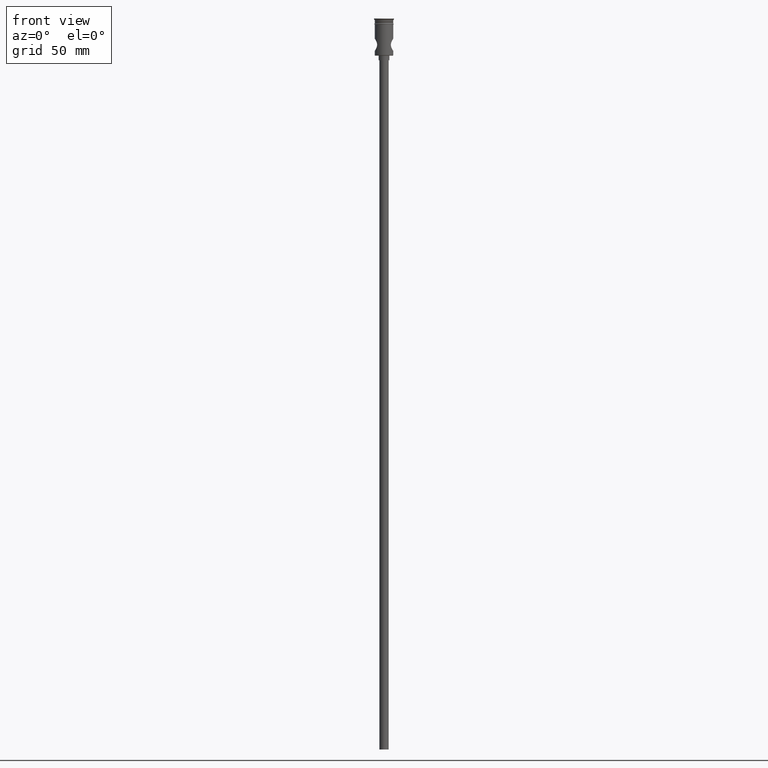
[diagram: clean part render]
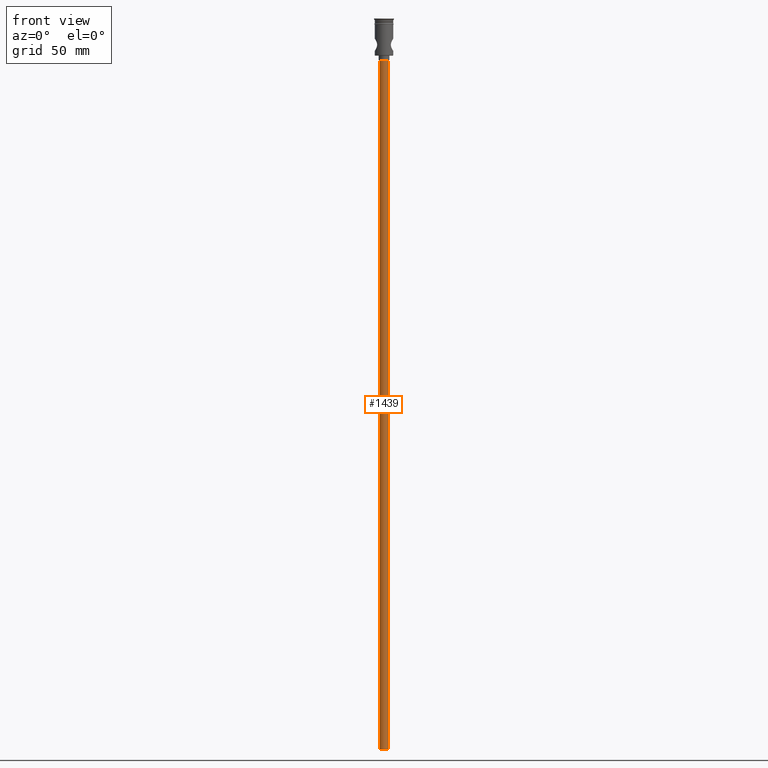
[diagram: same view with one face highlighted and labeled with its STEP entity id]
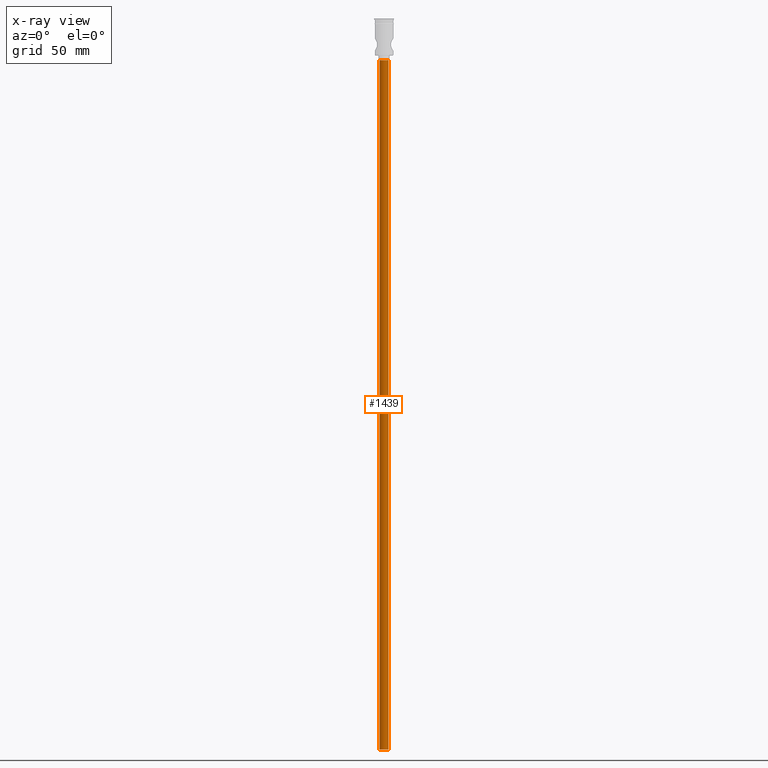
[diagram: x-ray of the same camera — body ghosted, the highlighted face saturated]
A machine part, front view. The second image highlights one B-rep face of the part: STEP entity #1439.
The next image is the same camera in x-ray: the body ghosted, the highlighted face saturated — about 0% of this face is hidden behind the body in this view.
In plain terms, the highlighted cylindrical surface (edge-blend (fillet) strip) has radius 3 mm, axis along (-0, -0, 1).
Its self-contained STEP definition (entity closure, byte-faithful):
#47 = VECTOR ( 'NONE', #1370, 1000.000000000000000 ) ;
#75 = AXIS2_PLACEMENT_3D ( 'NONE', #1131, #569, #490 ) ;
#99 = AXIS2_PLACEMENT_3D ( 'NONE', #714, #1155, #1264 ) ;
#125 = CIRCLE ( 'NONE', #837, 3.000000000000000444 ) ;
#175 = CARTESIAN_POINT ( 'NONE',  ( 3.000000000000000444, 0.000000000000000000, -474.0000000000000568 ) ) ;
#187 = VERTEX_POINT ( 'NONE', #175 ) ;
#335 = EDGE_CURVE ( 'NONE', #187, #1150, #1384, .T. ) ;
#351 = CYLINDRICAL_SURFACE ( 'NONE', #99, 3.000000000000000444 ) ;
#384 = CARTESIAN_POINT ( 'NONE',  ( -3.000000000000000444, 3.673940397442060361E-16, -27.00000000000000000 ) ) ;
#483 = DIRECTION ( 'NONE',  ( 0.000000000000000000, 0.000000000000000000, -1.000000000000000000 ) ) ;
#490 = DIRECTION ( 'NONE',  ( -1.000000000000000000, 0.000000000000000000, 0.000000000000000000 ) ) ;
#569 = DIRECTION ( 'NONE',  ( 0.000000000000000000, 0.000000000000000000, -1.000000000000000000 ) ) ;
#585 = FACE_OUTER_BOUND ( 'NONE', #1297, .T. ) ;
#595 = CARTESIAN_POINT ( 'NONE',  ( 3.000000000000000444, 0.000000000000000000, -474.0000000000000568 ) ) ;
#598 = ORIENTED_EDGE ( 'NONE', *, *, #335, .T. ) ;
#602 = CIRCLE ( 'NONE', #75, 3.000000000000000444 ) ;
#612 = EDGE_CURVE ( 'NONE', #1290, #976, #1042, .T. ) ;
#676 = DIRECTION ( 'NONE',  ( -0.000000000000000000, -0.000000000000000000, 1.000000000000000000 ) ) ;
#698 = CARTESIAN_POINT ( 'NONE',  ( 0.000000000000000000, 0.000000000000000000, -474.0000000000000568 ) ) ;
#706 = VECTOR ( 'NONE', #676, 1000.000000000000000 ) ;
#714 = CARTESIAN_POINT ( 'NONE',  ( 0.000000000000000000, 0.000000000000000000, -474.0000000000000568 ) ) ;
#722 = DIRECTION ( 'NONE',  ( -1.000000000000000000, 0.000000000000000000, 0.000000000000000000 ) ) ;
#818 = CARTESIAN_POINT ( 'NONE',  ( -3.000000000000000444, 3.673940397442060361E-16, -474.0000000000000568 ) ) ;
#837 = AXIS2_PLACEMENT_3D ( 'NONE', #698, #483, #722 ) ;
#911 = EDGE_CURVE ( 'NONE', #1150, #976, #602, .T. ) ;
#942 = EDGE_CURVE ( 'NONE', #187, #1290, #125, .T. ) ;
#976 = VERTEX_POINT ( 'NONE', #384 ) ;
#1042 = LINE ( 'NONE', #818, #706 ) ;
#1084 = ORIENTED_EDGE ( 'NONE', *, *, #942, .F. ) ;
#1107 = CARTESIAN_POINT ( 'NONE',  ( -3.000000000000000444, 3.673940397442060361E-16, -474.0000000000000568 ) ) ;
#1131 = CARTESIAN_POINT ( 'NONE',  ( 0.000000000000000000, 0.000000000000000000, -27.00000000000000000 ) ) ;
#1143 = ORIENTED_EDGE ( 'NONE', *, *, #612, .F. ) ;
#1150 = VERTEX_POINT ( 'NONE', #1257 ) ;
#1155 = DIRECTION ( 'NONE',  ( -0.000000000000000000, -0.000000000000000000, 1.000000000000000000 ) ) ;
#1257 = CARTESIAN_POINT ( 'NONE',  ( 3.000000000000000444, 0.000000000000000000, -27.00000000000000000 ) ) ;
#1264 = DIRECTION ( 'NONE',  ( 1.000000000000000000, 0.000000000000000000, 0.000000000000000000 ) ) ;
#1290 = VERTEX_POINT ( 'NONE', #1107 ) ;
#1297 = EDGE_LOOP ( 'NONE', ( #1143, #1084, #598, #1314 ) ) ;
#1314 = ORIENTED_EDGE ( 'NONE', *, *, #911, .T. ) ;
#1370 = DIRECTION ( 'NONE',  ( -0.000000000000000000, -0.000000000000000000, 1.000000000000000000 ) ) ;
#1384 = LINE ( 'NONE', #595, #47 ) ;
#1439 = ADVANCED_FACE ( 'NONE', ( #585 ), #351, .T. ) ;